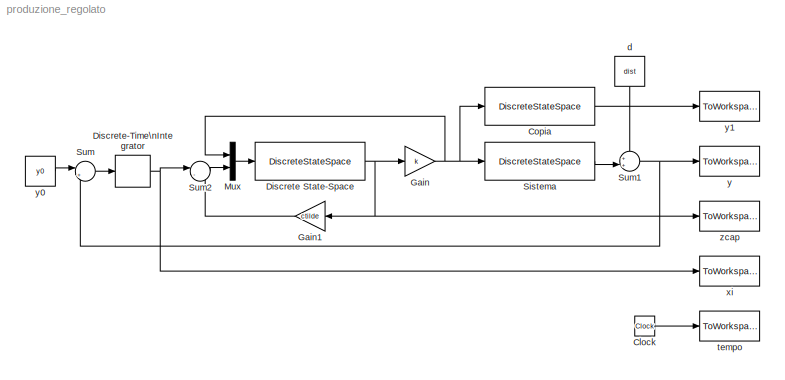
MODEL produzione_regolato
KIND model
BLOCK [Clock] Clock
  Decimation = 1
  SID = 4
BLOCK [DiscreteStateSpace] Copia
  A = A
  B = b
  C = [1 0; 0 1]
  D = [0; 0]
  SID = 25
  X0 = x0
BLOCK [DiscreteStateSpace] Discrete State-Space
  A = Atilde
  B = [btilde l]
  C = eye(3)
  D = [0 0; 0 0; 0 0]
  SID = 22
  X0 = [xcap0; 0]
BLOCK [DiscreteIntegrator] Discrete-Time\nIntegrator
  ExternalReset = none
  ICPrevOutput = DiscIntNeverNeededParam
  ICPrevScaledInput = DiscIntNeverNeededParam
  InitialConditionSource = internal
  IntegratorMethod = Integration: Forward Euler
  Ports = [1, 1]
  SID = 21
BLOCK [Gain] Gain
  Gain = k
  Multiplication = Matrix(K*u)
  OutDataTypeStr = Inherit: Inherit via internal rule
  ParamDataTypeStr = Inherit: Inherit via internal rule
  SID = 9
  SaturateOnIntegerOverflow = off
BLOCK [Gain] Gain1
  Gain = ctilde
  Multiplication = Matrix(K*u)
  OutDataTypeStr = Inherit: Inherit via internal rule
  ParamDataTypeStr = Inherit: Inherit via internal rule
  SID = 24
  SaturateOnIntegerOverflow = off
BLOCK [Mux] Mux
  DisplayOption = bar
  Inputs = 2
  Ports = [2, 1]
  SID = 10
BLOCK [DiscreteStateSpace] Sistema
  A = A
  B = b
  C = c
  D = d
  SID = 23
  X0 = x0
BLOCK [Sum] Sum
  IconShape = round
  InputSameDT = off
  Inputs = |+-
  OutDataTypeStr = Inherit: Inherit via internal rule
  Ports = [2, 1]
  SID = 7
  SaturateOnIntegerOverflow = off
BLOCK [Sum] Sum1
  IconShape = round
  InputSameDT = off
  Inputs = ++|
  OutDataTypeStr = Inherit: Inherit via internal rule
  Ports = [2, 1]
  SID = 20
  SaturateOnIntegerOverflow = off
BLOCK [Sum] Sum2
  IconShape = round
  InputSameDT = off
  Inputs = |-+
  OutDataTypeStr = Inherit: Inherit via internal rule
  Ports = [2, 1]
  SID = 17
  SaturateOnIntegerOverflow = off
BLOCK [Constant] d
  SID = 19
  Value = dist
BLOCK [ToWorkspace] tempo
  MaxDataPoints = inf
  Ports = [1]
  SID = 11
  SampleTime = -1
  SaveFormat = Array
  VariableName = t
BLOCK [ToWorkspace] xi
  MaxDataPoints = inf
  Ports = [1]
  SID = 13
  SampleTime = -1
  SaveFormat = Array
  VariableName = xi
BLOCK [ToWorkspace] y
  MaxDataPoints = inf
  Ports = [1]
  SID = 6
  SampleTime = -1
  SaveFormat = Array
  VariableName = y
BLOCK [Constant] y0
  SID = 5
  Value = y0
BLOCK [ToWorkspace] y1
  MaxDataPoints = inf
  Ports = [1]
  SID = 26
  SampleTime = -1
  SaveFormat = Array
  VariableName = x
BLOCK [ToWorkspace] zcap
  MaxDataPoints = inf
  Ports = [1]
  SID = 12
  SampleTime = -1
  SaveFormat = Array
  VariableName = zcap
LINE Clock:1 -> tempo:1
LINE Copia:1 -> y1:1
NET Discrete State-Space:1 -> Gain1:1, Gain:1, zcap:1
NET Discrete-Time\nIntegrator:1 -> Sum2:1, xi:1
LINE Gain1:1 -> Sum2:2
NET Gain:1 -> Copia:1, Mux:1, Sistema:1
LINE Mux:1 -> Discrete State-Space:1
LINE Sistema:1 -> Sum1:2
NET Sum1:1 -> Sum:2, y:1
LINE Sum2:1 -> Mux:2
LINE Sum:1 -> Discrete-Time\nIntegrator:1
LINE d:1 -> Sum1:1
LINE y0:1 -> Sum:1
note: NET lines group one-source signal fan-out (src -> all destinations, sorted); 1:1 wires keep LINE
